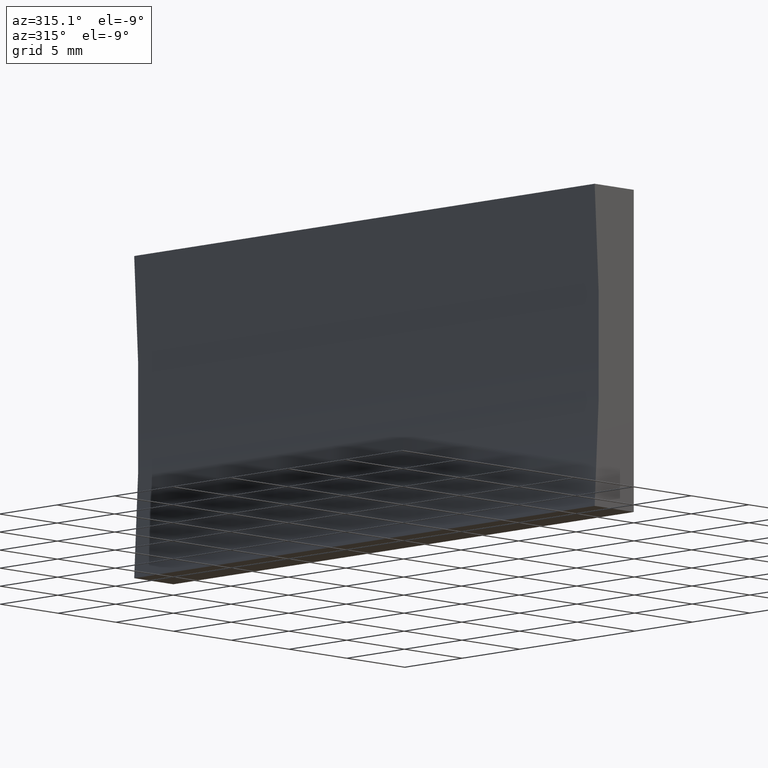
[diagram: clean part render]
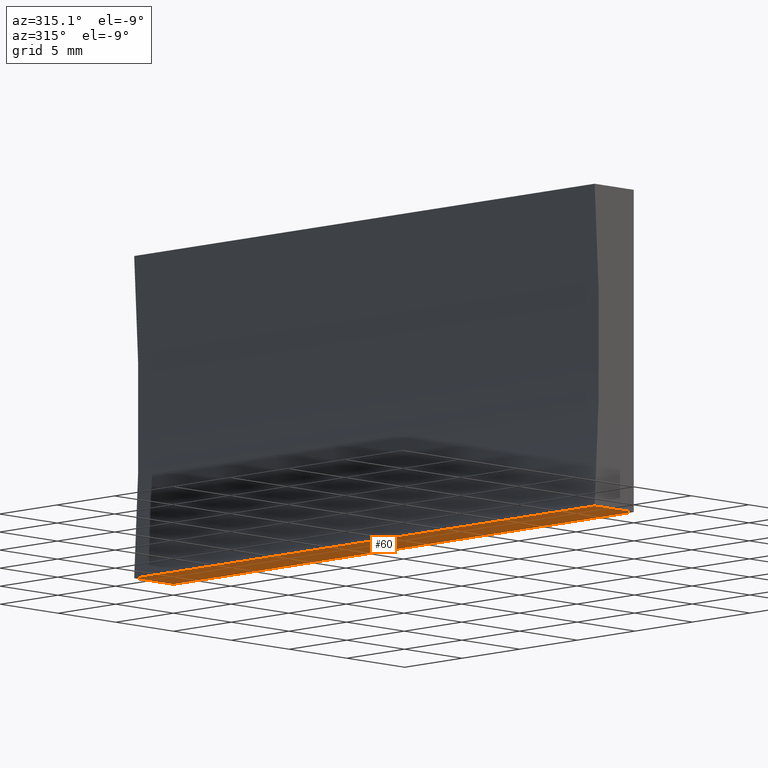
[diagram: same view with one face highlighted and labeled with its STEP entity id]
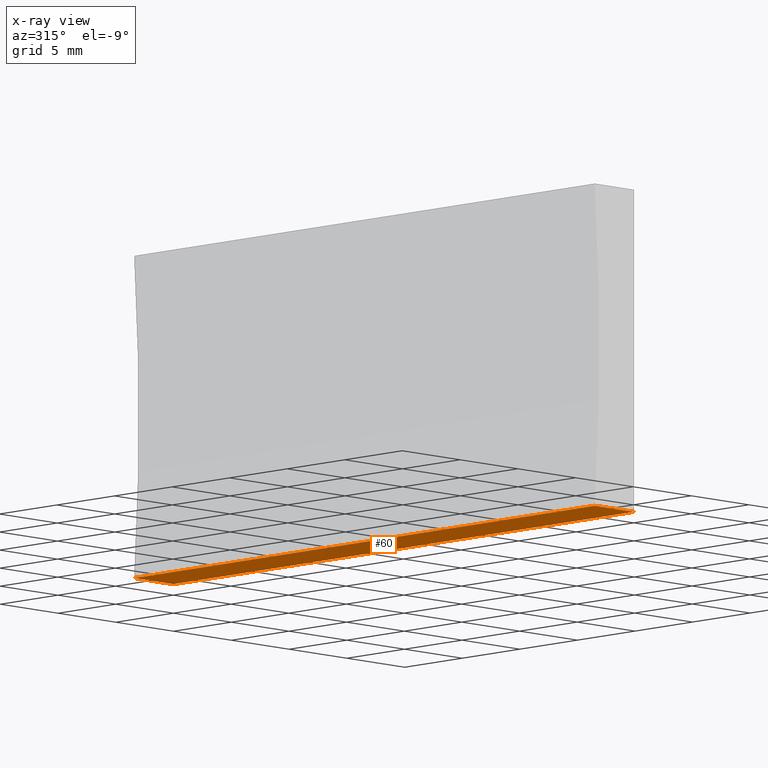
[diagram: x-ray of the same camera — body ghosted, the highlighted face saturated]
A machine part, auxiliary view. The second image highlights one B-rep face of the part: STEP entity #60.
The next image is the same camera in x-ray: the body ghosted, the highlighted face saturated — about 0% of this face is hidden behind the body in this view.
In plain terms, the highlighted planar face has unit normal (0, -0, 1).
Its self-contained STEP definition (entity closure, byte-faithful):
#1 = CARTESIAN_POINT ( 'NONE',  ( -3.387427854322250000, 40.00000000000000000, 1.214306433183765000E-014 ) ) ;
#5 = ORIENTED_EDGE ( 'NONE', *, *, #178, .T. ) ;
#6 = CARTESIAN_POINT ( 'NONE',  ( 0.0000000000000000000, 0.0000000000000000000, 0.0000000000000000000 ) ) ;
#8 = EDGE_CURVE ( 'NONE', #13, #55, #180, .T. ) ;
#13 = VERTEX_POINT ( 'NONE', #161 ) ;
#16 = CARTESIAN_POINT ( 'NONE',  ( 0.0000000000000000000, 40.00000000000000000, 0.0000000000000000000 ) ) ;
#19 = DIRECTION ( 'NONE',  ( 0.0000000000000000000, -0.0000000000000000000, 1.000000000000000000 ) ) ;
#20 = ORIENTED_EDGE ( 'NONE', *, *, #96, .F. ) ;
#24 = FACE_OUTER_BOUND ( 'NONE', #93, .T. ) ;
#25 = ORIENTED_EDGE ( 'NONE', *, *, #8, .T. ) ;
#29 = VECTOR ( 'NONE', #121, 1000.000000000000000 ) ;
#39 = CARTESIAN_POINT ( 'NONE',  ( -3.387427854322250000, 40.00000000000000000, 1.214306433183765000E-014 ) ) ;
#51 = CARTESIAN_POINT ( 'NONE',  ( 0.0000000000000000000, 40.00000000000000000, 0.0000000000000000000 ) ) ;
#55 = VERTEX_POINT ( 'NONE', #105 ) ;
#58 = VECTOR ( 'NONE', #141, 1000.000000000000000 ) ;
#60 = ADVANCED_FACE ( 'NONE', ( #24 ), #191, .F. ) ;
#62 = EDGE_CURVE ( 'NONE', #13, #106, #130, .T. ) ;
#78 = DIRECTION ( 'NONE',  ( -1.000000000000000000, 0.0000000000000000000, 0.0000000000000000000 ) ) ;
#85 = LINE ( 'NONE', #6, #29 ) ;
#93 = EDGE_LOOP ( 'NONE', ( #5, #20, #145, #25 ) ) ;
#94 = CARTESIAN_POINT ( 'NONE',  ( -3.387427854322250000, 0.0000000000000000000, 1.214306433183765000E-014 ) ) ;
#96 = EDGE_CURVE ( 'NONE', #106, #112, #165, .T. ) ;
#105 = CARTESIAN_POINT ( 'NONE',  ( 0.0000000000000000000, 0.0000000000000000000, 0.0000000000000000000 ) ) ;
#106 = VERTEX_POINT ( 'NONE', #1 ) ;
#111 = AXIS2_PLACEMENT_3D ( 'NONE', #189, #19, #169 ) ;
#112 = VERTEX_POINT ( 'NONE', #94 ) ;
#121 = DIRECTION ( 'NONE',  ( -1.000000000000000000, 0.0000000000000000000, 0.0000000000000000000 ) ) ;
#130 = LINE ( 'NONE', #16, #136 ) ;
#136 = VECTOR ( 'NONE', #78, 1000.000000000000000 ) ;
#141 = DIRECTION ( 'NONE',  ( -0.0000000000000000000, -1.000000000000000000, -0.0000000000000000000 ) ) ;
#145 = ORIENTED_EDGE ( 'NONE', *, *, #62, .F. ) ;
#161 = CARTESIAN_POINT ( 'NONE',  ( 0.0000000000000000000, 40.00000000000000000, 0.0000000000000000000 ) ) ;
#165 = LINE ( 'NONE', #39, #58 ) ;
#169 = DIRECTION ( 'NONE',  ( 1.000000000000000000, 0.0000000000000000000, -0.0000000000000000000 ) ) ;
#178 = EDGE_CURVE ( 'NONE', #55, #112, #85, .T. ) ;
#179 = DIRECTION ( 'NONE',  ( -0.0000000000000000000, -1.000000000000000000, -0.0000000000000000000 ) ) ;
#180 = LINE ( 'NONE', #51, #197 ) ;
#189 = CARTESIAN_POINT ( 'NONE',  ( 0.0000000000000000000, 40.00000000000000000, 0.0000000000000000000 ) ) ;
#191 = PLANE ( 'NONE',  #111 ) ;
#197 = VECTOR ( 'NONE', #179, 1000.000000000000000 ) ;